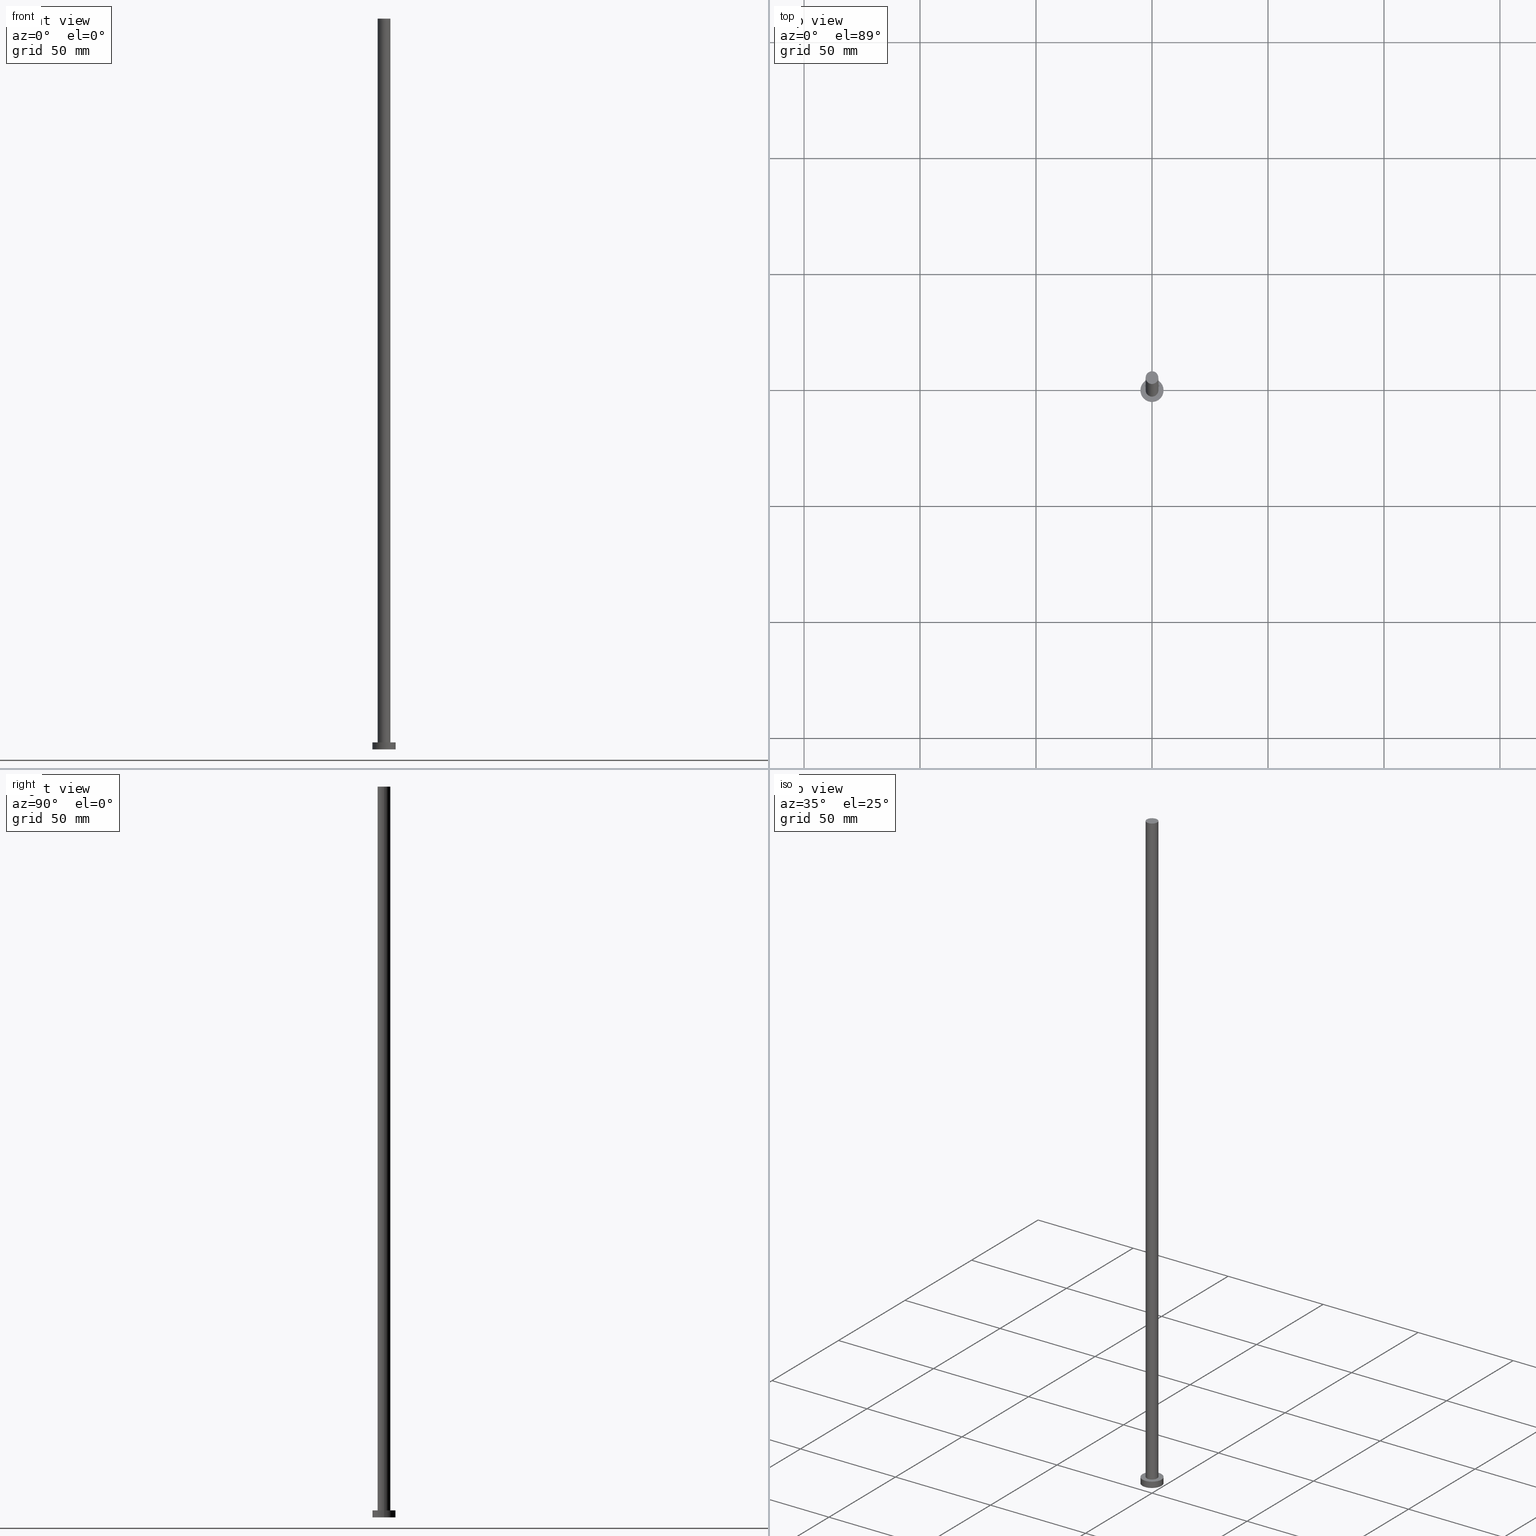
[diagram: canonical four-view strip — front | top / right | iso, engineering-drawing reading convention]
A machine part, canonical four-view strip (front | top / right | iso — engineering-drawing reading convention). The complete STEP part file that produces these views, byte-faithful:
ISO-10303-21;
HEADER;
FILE_DESCRIPTION (( 'STEP AP203' ),
    '1' );
FILE_NAME ('91d9.STEP',
    '2023-02-12T12:21:21',
    ( '' ),
    ( '' ),
    'SwSTEP 2.0',
    'SolidWorks 2019',
    '' );
FILE_SCHEMA (( 'CONFIG_CONTROL_DESIGN' ));
ENDSEC;

DATA;
#1 = EDGE_CURVE ( 'NONE', #143, #55, #217, .T. ) ;
#2 = CARTESIAN_POINT ( 'NONE',  ( 0.000000000000000000, 0.000000000000000000, 3.000000000000000000 ) ) ;
#3 = CARTESIAN_POINT ( 'NONE',  ( 0.000000000000000000, 0.000000000000000000, 3.000000000000000000 ) ) ;
#4 = AXIS2_PLACEMENT_3D ( 'NONE', #2, #221, #104 ) ;
#5 = ORIENTED_EDGE ( 'NONE', *, *, #17, .F. ) ;
#6 = DIRECTION ( 'NONE',  ( -0.000000000000000000, -0.000000000000000000, -1.000000000000000000 ) ) ;
#7 = ADVANCED_FACE ( 'NONE', ( #97 ), #250, .T. ) ;
#8 = AXIS2_PLACEMENT_3D ( 'NONE', #3, #147, #249 ) ;
#9 = DIRECTION ( 'NONE',  ( -1.000000000000000000, 0.000000000000000000, 0.000000000000000000 ) ) ;
#10 = CALENDAR_DATE ( 2023, 12, 2 ) ;
#11 = DESIGN_CONTEXT ( 'detailed design', #126, 'design' ) ;
#12 = PRODUCT_DEFINITION_SHAPE ( 'NONE', 'NONE',  #187 ) ;
#13 = APPROVAL_STATUS ( 'not_yet_approved' ) ;
#14 = DATE_TIME_ROLE ( 'classification_date' ) ;
#15 = EDGE_LOOP ( 'NONE', ( #253, #19 ) ) ;
#16 = CIRCLE ( 'NONE', #4, 2.750000000000000000 ) ;
#17 = EDGE_CURVE ( 'NONE', #98, #138, #188, .T. ) ;
#18 = ORIENTED_EDGE ( 'NONE', *, *, #1, .T. ) ;
#19 = ORIENTED_EDGE ( 'NONE', *, *, #150, .T. ) ;
#20 = ORIENTED_EDGE ( 'NONE', *, *, #150, .F. ) ;
#21 = ORGANIZATION ( 'NEUR�EN�', 'NEUR�EN�', '' ) ;
#22 = DIRECTION ( 'NONE',  ( 1.000000000000000000, 0.000000000000000000, 0.000000000000000000 ) ) ;
#23 = PRODUCT_DEFINITION_FORMATION_WITH_SPECIFIED_SOURCE ( 'LIBOVOLN�', '', #34, .NOT_KNOWN. ) ;
#24 = AXIS2_PLACEMENT_3D ( 'NONE', #95, #173, #209 ) ;
#25 = EDGE_CURVE ( 'NONE', #98, #157, #220, .T. ) ;
#26 = DIRECTION ( 'NONE',  ( -1.000000000000000000, 0.000000000000000000, 0.000000000000000000 ) ) ;
#27 = DIRECTION ( 'NONE',  ( 1.000000000000000000, 0.000000000000000000, 0.000000000000000000 ) ) ;
#28 = DIRECTION ( 'NONE',  ( -0.000000000000000000, -0.000000000000000000, -1.000000000000000000 ) ) ;
#29 = CIRCLE ( 'NONE', #129, 2.750000000000000000 ) ;
#30 = DATE_TIME_ROLE ( 'creation_date' ) ;
#31 = DIRECTION ( 'NONE',  ( -0.000000000000000000, -0.000000000000000000, -1.000000000000000000 ) ) ;
#32 = DIRECTION ( 'NONE',  ( 0.000000000000000000, 0.000000000000000000, 1.000000000000000000 ) ) ;
#33 = CARTESIAN_POINT ( 'NONE',  ( 2.750000000000000000, 3.367778697655221012E-16, 3.000000000000000000 ) ) ;
#34 = PRODUCT ( '91d9', '91d9', '', ( #151 ) ) ;
#35 = ORIENTED_EDGE ( 'NONE', *, *, #25, .F. ) ;
#36 = PERSON_AND_ORGANIZATION_ROLE ( 'classification_officer' ) ;
#37 = EDGE_LOOP ( 'NONE', ( #18, #215 ) ) ;
#38 = EDGE_LOOP ( 'NONE', ( #232, #216, #213, #83 ) ) ;
#39 = VECTOR ( 'NONE', #28, 1000.000000000000000 ) ;
#40 = EDGE_LOOP ( 'NONE', ( #222, #35, #233, #228 ) ) ;
#41 = DIRECTION ( 'NONE',  ( 1.000000000000000000, 0.000000000000000000, 0.000000000000000000 ) ) ;
#42 = DIRECTION ( 'NONE',  ( 0.000000000000000000, 0.000000000000000000, 1.000000000000000000 ) ) ;
#43 = PERSON ( 'NEUR�EN�', 'NEUR�EN�', 'NEUR�EN�', ('NEUR�EN�'), ('NEUR�EN�'), ('NEUR�EN�') ) ;
#44 = CARTESIAN_POINT ( 'NONE',  ( 0.000000000000000000, 0.000000000000000000, 315.0000000000000000 ) ) ;
#45 = AXIS2_PLACEMENT_3D ( 'NONE', #165, #70, #27 ) ;
#46 = CC_DESIGN_PERSON_AND_ORGANIZATION_ASSIGNMENT ( #168, #194, ( #23 ) ) ;
#47 = DIRECTION ( 'NONE',  ( 1.000000000000000000, 0.000000000000000000, 0.000000000000000000 ) ) ;
#48 = PERSON_AND_ORGANIZATION ( #43, #21 ) ;
#49 = CIRCLE ( 'NONE', #207, 5.000000000000000000 ) ;
#50 = PERSON_AND_ORGANIZATION ( #43, #21 ) ;
#51 = PERSON_AND_ORGANIZATION ( #43, #21 ) ;
#52 = CARTESIAN_POINT ( 'NONE',  ( 0.000000000000000000, 0.000000000000000000, 3.000000000000000000 ) ) ;
#53 = EDGE_CURVE ( 'NONE', #138, #254, #140, .T. ) ;
#54 = SECURITY_CLASSIFICATION ( '', '', #96 ) ;
#55 = VERTEX_POINT ( 'NONE', #162 ) ;
#56 = COORDINATED_UNIVERSAL_TIME_OFFSET ( 1, 0, .AHEAD. ) ;
#57 = CC_DESIGN_PERSON_AND_ORGANIZATION_ASSIGNMENT ( #230, #36, ( #54 ) ) ;
#58 = DIRECTION ( 'NONE',  ( -0.000000000000000000, -0.000000000000000000, -1.000000000000000000 ) ) ;
#59 = PERSON_AND_ORGANIZATION ( #43, #21 ) ;
#60 = ORIENTED_EDGE ( 'NONE', *, *, #235, .T. ) ;
#61 = DIRECTION ( 'NONE',  ( 0.000000000000000000, 0.000000000000000000, 1.000000000000000000 ) ) ;
#62 = CC_DESIGN_APPROVAL ( #128, ( #54 ) ) ;
#63 = CARTESIAN_POINT ( 'NONE',  ( 0.000000000000000000, 0.000000000000000000, 315.0000000000000000 ) ) ;
#64 = MANIFOLD_SOLID_BREP ( 'P�idat vysunut�m3', #245 ) ;
#65 = PLANE ( 'NONE',  #82 ) ;
#66 = LOCAL_TIME ( 13, 21, 21.00000000000000000, #223 ) ;
#67 = AXIS2_PLACEMENT_3D ( 'NONE', #114, #78, #136 ) ;
#68 = LOCAL_TIME ( 13, 21, 21.00000000000000000, #111 ) ;
#69 = FACE_OUTER_BOUND ( 'NONE', #201, .T. ) ;
#70 = DIRECTION ( 'NONE',  ( 0.000000000000000000, 0.000000000000000000, 1.000000000000000000 ) ) ;
#71 = APPROVAL_DATE_TIME ( #93, #146 ) ;
#72 = PERSON_AND_ORGANIZATION ( #43, #21 ) ;
#73 = APPROVAL_ROLE ( '' ) ;
#74 = CARTESIAN_POINT ( 'NONE',  ( -5.000000000000000000, 0.000000000000000000, 0.000000000000000000 ) ) ;
#75 = CALENDAR_DATE ( 2023, 12, 2 ) ;
#76 = APPROVAL_DATE_TIME ( #248, #212 ) ;
#77 = FACE_OUTER_BOUND ( 'NONE', #40, .T. ) ;
#78 = DIRECTION ( 'NONE',  ( -0.000000000000000000, -0.000000000000000000, -1.000000000000000000 ) ) ;
#79 = EDGE_CURVE ( 'NONE', #55, #139, #110, .T. ) ;
#80 = APPROVAL_STATUS ( 'not_yet_approved' ) ;
#81 = PRODUCT_RELATED_PRODUCT_CATEGORY ( 'detail', '', ( #34 ) ) ;
#82 = AXIS2_PLACEMENT_3D ( 'NONE', #145, #42, #88 ) ;
#83 = ORIENTED_EDGE ( 'NONE', *, *, #235, .F. ) ;
#84 = DIRECTION ( 'NONE',  ( -0.000000000000000000, -0.000000000000000000, -1.000000000000000000 ) ) ;
#85 = CARTESIAN_POINT ( 'NONE',  ( 5.000000000000000000, 6.123233995736766282E-16, 3.000000000000000000 ) ) ;
#86 = EDGE_LOOP ( 'NONE', ( #20, #137, #99, #5 ) ) ;
#87 = ADVANCED_FACE ( 'NONE', ( #69 ), #65, .F. ) ;
#88 = DIRECTION ( 'NONE',  ( 1.000000000000000000, 0.000000000000000000, -0.000000000000000000 ) ) ;
#89 = APPROVAL_PERSON_ORGANIZATION ( #50, #128, #176 ) ;
#90 =( GEOMETRIC_REPRESENTATION_CONTEXT ( 3 ) GLOBAL_UNCERTAINTY_ASSIGNED_CONTEXT ( ( #112 ) ) GLOBAL_UNIT_ASSIGNED_CONTEXT ( ( #208, #191, #130 ) ) REPRESENTATION_CONTEXT ( 'NONE', 'WORKASPACE' ) );
#91 = DIRECTION ( 'NONE',  ( 1.000000000000000000, 0.000000000000000000, 0.000000000000000000 ) ) ;
#92 = CALENDAR_DATE ( 2023, 12, 2 ) ;
#93 = DATE_AND_TIME ( #10, #68 ) ;
#94 = COORDINATED_UNIVERSAL_TIME_OFFSET ( 1, 0, .AHEAD. ) ;
#95 = CARTESIAN_POINT ( 'NONE',  ( 0.000000000000000000, 0.000000000000000000, 3.000000000000000000 ) ) ;
#96 = SECURITY_CLASSIFICATION_LEVEL ( 'unclassified' ) ;
#97 = FACE_OUTER_BOUND ( 'NONE', #115, .T. ) ;
#98 = VERTEX_POINT ( 'NONE', #234 ) ;
#99 = ORIENTED_EDGE ( 'NONE', *, *, #227, .T. ) ;
#100 = ORIENTED_EDGE ( 'NONE', *, *, #185, .T. ) ;
#101 = ORIENTED_EDGE ( 'NONE', *, *, #185, .F. ) ;
#102 = EDGE_CURVE ( 'NONE', #157, #254, #255, .T. ) ;
#103 = CC_DESIGN_PERSON_AND_ORGANIZATION_ASSIGNMENT ( #48, #243, ( #187 ) ) ;
#104 = DIRECTION ( 'NONE',  ( 1.000000000000000000, 0.000000000000000000, 0.000000000000000000 ) ) ;
#105 = AXIS2_PLACEMENT_3D ( 'NONE', #63, #203, #142 ) ;
#106 = CARTESIAN_POINT ( 'NONE',  ( 2.750000000000000000, 3.367778697655221012E-16, 315.0000000000000000 ) ) ;
#107 = CARTESIAN_POINT ( 'NONE',  ( -5.000000000000000000, 0.000000000000000000, 3.000000000000000000 ) ) ;
#108 = CC_DESIGN_APPROVAL ( #212, ( #187 ) ) ;
#109 = AXIS2_PLACEMENT_3D ( 'NONE', #52, #84, #158 ) ;
#110 = LINE ( 'NONE', #106, #155 ) ;
#111 = COORDINATED_UNIVERSAL_TIME_OFFSET ( 1, 0, .AHEAD. ) ;
#112 = UNCERTAINTY_MEASURE_WITH_UNIT (LENGTH_MEASURE( 1.000000000000000082E-05 ), #208, 'distance_accuracy_value', 'NONE');
#113 = CYLINDRICAL_SURFACE ( 'NONE', #109, 5.000000000000000000 ) ;
#114 = CARTESIAN_POINT ( 'NONE',  ( 0.000000000000000000, 0.000000000000000000, 3.000000000000000000 ) ) ;
#115 = EDGE_LOOP ( 'NONE', ( #182, #120, #60, #100 ) ) ;
#116 = AXIS2_PLACEMENT_3D ( 'NONE', #156, #58, #26 ) ;
#117 = CARTESIAN_POINT ( 'NONE',  ( 5.000000000000000000, 6.123233995736766282E-16, 3.000000000000000000 ) ) ;
#118 = ADVANCED_FACE ( 'NONE', ( #159 ), #119, .T. ) ;
#119 = PLANE ( 'NONE',  #105 ) ;
#120 = ORIENTED_EDGE ( 'NONE', *, *, #1, .F. ) ;
#121 = LOCAL_TIME ( 13, 21, 21.00000000000000000, #56 ) ;
#122 = CC_DESIGN_DATE_AND_TIME_ASSIGNMENT ( #226, #30, ( #187 ) ) ;
#123 = CIRCLE ( 'NONE', #8, 2.750000000000000000 ) ;
#124 = DIRECTION ( 'NONE',  ( 0.000000000000000000, 0.000000000000000000, 1.000000000000000000 ) ) ;
#125 = ADVANCED_FACE ( 'NONE', ( #135, #132 ), #193, .T. ) ;
#126 = APPLICATION_CONTEXT ( 'configuration controlled 3d designs of mechanical parts and assemblies' ) ;
#127 = LINE ( 'NONE', #189, #39 ) ;
#128 = APPROVAL ( #80, 'NEUR�EN�' ) ;
#129 = AXIS2_PLACEMENT_3D ( 'NONE', #44, #124, #22 ) ;
#130 =( NAMED_UNIT ( * ) SI_UNIT ( $, .STERADIAN. ) SOLID_ANGLE_UNIT ( ) );
#131 = CYLINDRICAL_SURFACE ( 'NONE', #184, 2.750000000000000000 ) ;
#132 = FACE_OUTER_BOUND ( 'NONE', #15, .T. ) ;
#133 = CYLINDRICAL_SURFACE ( 'NONE', #67, 5.000000000000000000 ) ;
#134 = DATE_AND_TIME ( #75, #251 ) ;
#135 = FACE_BOUND ( 'NONE', #236, .T. ) ;
#136 = DIRECTION ( 'NONE',  ( -1.000000000000000000, 0.000000000000000000, 0.000000000000000000 ) ) ;
#137 = ORIENTED_EDGE ( 'NONE', *, *, #102, .T. ) ;
#138 = VERTEX_POINT ( 'NONE', #74 ) ;
#139 = VERTEX_POINT ( 'NONE', #33 ) ;
#140 = CIRCLE ( 'NONE', #45, 5.000000000000000000 ) ;
#141 = ADVANCED_FACE ( 'NONE', ( #77 ), #113, .T. ) ;
#142 = DIRECTION ( 'NONE',  ( 1.000000000000000000, 0.000000000000000000, -0.000000000000000000 ) ) ;
#143 = VERTEX_POINT ( 'NONE', #144 ) ;
#144 = CARTESIAN_POINT ( 'NONE',  ( -2.750000000000000000, 0.000000000000000000, 315.0000000000000000 ) ) ;
#145 = CARTESIAN_POINT ( 'NONE',  ( 0.000000000000000000, 0.000000000000000000, 0.000000000000000000 ) ) ;
#146 = APPROVAL ( #154, 'NEUR�EN�' ) ;
#147 = DIRECTION ( 'NONE',  ( 0.000000000000000000, 0.000000000000000000, 1.000000000000000000 ) ) ;
#148 = DIRECTION ( 'NONE',  ( -0.000000000000000000, -0.000000000000000000, -1.000000000000000000 ) ) ;
#149 = VECTOR ( 'NONE', #148, 1000.000000000000000 ) ;
#150 = EDGE_CURVE ( 'NONE', #157, #98, #252, .T. ) ;
#151 = MECHANICAL_CONTEXT ( 'NONE', #237, 'mechanical' ) ;
#152 = CALENDAR_DATE ( 2023, 12, 2 ) ;
#153 = APPROVAL_DATE_TIME ( #246, #128 ) ;
#154 = APPROVAL_STATUS ( 'not_yet_approved' ) ;
#155 = VECTOR ( 'NONE', #240, 1000.000000000000000 ) ;
#156 = CARTESIAN_POINT ( 'NONE',  ( 0.000000000000000000, 0.000000000000000000, 315.0000000000000000 ) ) ;
#157 = VERTEX_POINT ( 'NONE', #117 ) ;
#158 = DIRECTION ( 'NONE',  ( -1.000000000000000000, 0.000000000000000000, 0.000000000000000000 ) ) ;
#159 = FACE_OUTER_BOUND ( 'NONE', #37, .T. ) ;
#160 = VERTEX_POINT ( 'NONE', #202 ) ;
#161 = EDGE_CURVE ( 'NONE', #55, #143, #29, .T. ) ;
#162 = CARTESIAN_POINT ( 'NONE',  ( 2.750000000000000000, 3.367778697655221012E-16, 315.0000000000000000 ) ) ;
#163 = APPROVAL_ROLE ( '' ) ;
#164 = LOCAL_TIME ( 13, 21, 21.00000000000000000, #94 ) ;
#165 = CARTESIAN_POINT ( 'NONE',  ( 0.000000000000000000, 0.000000000000000000, 0.000000000000000000 ) ) ;
#166 = PERSON_AND_ORGANIZATION ( #43, #21 ) ;
#167 = PERSON_AND_ORGANIZATION_ROLE ( 'design_owner' ) ;
#168 = PERSON_AND_ORGANIZATION ( #43, #21 ) ;
#169 = COORDINATED_UNIVERSAL_TIME_OFFSET ( 1, 0, .AHEAD. ) ;
#170 = CC_DESIGN_APPROVAL ( #146, ( #23 ) ) ;
#171 = AXIS2_PLACEMENT_3D ( 'NONE', #218, #200, #41 ) ;
#172 = APPLICATION_PROTOCOL_DEFINITION ( 'international standard', 'config_control_design', 1994, #237 ) ;
#173 = DIRECTION ( 'NONE',  ( 0.000000000000000000, 0.000000000000000000, 1.000000000000000000 ) ) ;
#174 = FACE_OUTER_BOUND ( 'NONE', #86, .T. ) ;
#175 = EDGE_CURVE ( 'NONE', #139, #160, #16, .T. ) ;
#176 = APPROVAL_ROLE ( '' ) ;
#177 = ORIENTED_EDGE ( 'NONE', *, *, #53, .F. ) ;
#178 = SHAPE_DEFINITION_REPRESENTATION ( #12, #238 ) ;
#179 = CC_DESIGN_PERSON_AND_ORGANIZATION_ASSIGNMENT ( #59, #214, ( #23 ) ) ;
#180 = ORIENTED_EDGE ( 'NONE', *, *, #227, .F. ) ;
#181 = DIRECTION ( 'NONE',  ( 1.000000000000000000, 0.000000000000000000, 0.000000000000000000 ) ) ;
#182 = ORIENTED_EDGE ( 'NONE', *, *, #79, .F. ) ;
#183 = APPROVAL_PERSON_ORGANIZATION ( #166, #146, #163 ) ;
#184 = AXIS2_PLACEMENT_3D ( 'NONE', #247, #31, #9 ) ;
#185 = EDGE_CURVE ( 'NONE', #160, #139, #123, .T. ) ;
#186 = CARTESIAN_POINT ( 'NONE',  ( 0.000000000000000000, 0.000000000000000000, 3.000000000000000000 ) ) ;
#187 = PRODUCT_DEFINITION ( 'NEZN�M�', '', #23, #11 ) ;
#188 = LINE ( 'NONE', #107, #239 ) ;
#189 = CARTESIAN_POINT ( 'NONE',  ( -2.750000000000000000, 0.000000000000000000, 315.0000000000000000 ) ) ;
#190 = CARTESIAN_POINT ( 'NONE',  ( 0.000000000000000000, 0.000000000000000000, 0.000000000000000000 ) ) ;
#191 =( NAMED_UNIT ( * ) PLANE_ANGLE_UNIT ( ) SI_UNIT ( $, .RADIAN. ) );
#192 = APPLICATION_PROTOCOL_DEFINITION ( 'international standard', 'config_control_design', 1994, #126 ) ;
#193 = PLANE ( 'NONE',  #24 ) ;
#194 = PERSON_AND_ORGANIZATION_ROLE ( 'creator' ) ;
#195 = CC_DESIGN_PERSON_AND_ORGANIZATION_ASSIGNMENT ( #51, #167, ( #34 ) ) ;
#196 = CARTESIAN_POINT ( 'NONE',  ( 0.000000000000000000, 0.000000000000000000, 315.0000000000000000 ) ) ;
#197 = CALENDAR_DATE ( 2023, 12, 2 ) ;
#198 = CC_DESIGN_DATE_AND_TIME_ASSIGNMENT ( #134, #14, ( #54 ) ) ;
#199 = CC_DESIGN_SECURITY_CLASSIFICATION ( #54, ( #23 ) ) ;
#200 = DIRECTION ( 'NONE',  ( 0.000000000000000000, 0.000000000000000000, 1.000000000000000000 ) ) ;
#201 = EDGE_LOOP ( 'NONE', ( #177, #180 ) ) ;
#202 = CARTESIAN_POINT ( 'NONE',  ( -2.750000000000000000, 0.000000000000000000, 3.000000000000000000 ) ) ;
#203 = DIRECTION ( 'NONE',  ( 0.000000000000000000, 0.000000000000000000, 1.000000000000000000 ) ) ;
#204 = ORIENTED_EDGE ( 'NONE', *, *, #175, .F. ) ;
#205 = DIRECTION ( 'NONE',  ( 0.000000000000000000, 0.000000000000000000, 1.000000000000000000 ) ) ;
#206 = DIRECTION ( 'NONE',  ( 1.000000000000000000, 0.000000000000000000, 0.000000000000000000 ) ) ;
#207 = AXIS2_PLACEMENT_3D ( 'NONE', #190, #224, #206 ) ;
#208 =( LENGTH_UNIT ( ) NAMED_UNIT ( * ) SI_UNIT ( .MILLI., .METRE. ) );
#209 = DIRECTION ( 'NONE',  ( 1.000000000000000000, 0.000000000000000000, -0.000000000000000000 ) ) ;
#210 = ADVANCED_FACE ( 'NONE', ( #174 ), #133, .T. ) ;
#211 = FACE_OUTER_BOUND ( 'NONE', #38, .T. ) ;
#212 = APPROVAL ( #13, 'NEUR�EN�' ) ;
#213 = ORIENTED_EDGE ( 'NONE', *, *, #175, .T. ) ;
#214 = PERSON_AND_ORGANIZATION_ROLE ( 'design_supplier' ) ;
#215 = ORIENTED_EDGE ( 'NONE', *, *, #161, .T. ) ;
#216 = ORIENTED_EDGE ( 'NONE', *, *, #79, .T. ) ;
#217 = CIRCLE ( 'NONE', #231, 2.750000000000000000 ) ;
#218 = CARTESIAN_POINT ( 'NONE',  ( 0.000000000000000000, 0.000000000000000000, 3.000000000000000000 ) ) ;
#219 = ADVANCED_FACE ( 'NONE', ( #211 ), #131, .T. ) ;
#220 = CIRCLE ( 'NONE', #225, 5.000000000000000000 ) ;
#221 = DIRECTION ( 'NONE',  ( 0.000000000000000000, 0.000000000000000000, 1.000000000000000000 ) ) ;
#222 = ORIENTED_EDGE ( 'NONE', *, *, #102, .F. ) ;
#223 = COORDINATED_UNIVERSAL_TIME_OFFSET ( 1, 0, .AHEAD. ) ;
#224 = DIRECTION ( 'NONE',  ( 0.000000000000000000, 0.000000000000000000, 1.000000000000000000 ) ) ;
#225 = AXIS2_PLACEMENT_3D ( 'NONE', #186, #205, #91 ) ;
#226 = DATE_AND_TIME ( #92, #66 ) ;
#227 = EDGE_CURVE ( 'NONE', #254, #138, #49, .T. ) ;
#228 = ORIENTED_EDGE ( 'NONE', *, *, #53, .T. ) ;
#229 = APPROVAL_PERSON_ORGANIZATION ( #72, #212, #73 ) ;
#230 = PERSON_AND_ORGANIZATION ( #43, #21 ) ;
#231 = AXIS2_PLACEMENT_3D ( 'NONE', #196, #61, #181 ) ;
#232 = ORIENTED_EDGE ( 'NONE', *, *, #161, .F. ) ;
#233 = ORIENTED_EDGE ( 'NONE', *, *, #17, .T. ) ;
#234 = CARTESIAN_POINT ( 'NONE',  ( -5.000000000000000000, 0.000000000000000000, 3.000000000000000000 ) ) ;
#235 = EDGE_CURVE ( 'NONE', #143, #160, #127, .T. ) ;
#236 = EDGE_LOOP ( 'NONE', ( #101, #204 ) ) ;
#237 = APPLICATION_CONTEXT ( 'configuration controlled 3d designs of mechanical parts and assemblies' ) ;
#238 = ADVANCED_BREP_SHAPE_REPRESENTATION ( '91d9', ( #64, #242 ), #90 ) ;
#239 = VECTOR ( 'NONE', #6, 1000.000000000000000 ) ;
#240 = DIRECTION ( 'NONE',  ( -0.000000000000000000, -0.000000000000000000, -1.000000000000000000 ) ) ;
#241 = CARTESIAN_POINT ( 'NONE',  ( 5.000000000000000000, 6.123233995736766282E-16, 0.000000000000000000 ) ) ;
#242 = AXIS2_PLACEMENT_3D ( 'NONE', #244, #32, #47 ) ;
#243 = PERSON_AND_ORGANIZATION_ROLE ( 'creator' ) ;
#244 = CARTESIAN_POINT ( 'NONE',  ( 0.000000000000000000, 0.000000000000000000, 0.000000000000000000 ) ) ;
#245 = CLOSED_SHELL ( 'NONE', ( #219, #210, #141, #125, #87, #7, #118 ) ) ;
#246 = DATE_AND_TIME ( #197, #121 ) ;
#247 = CARTESIAN_POINT ( 'NONE',  ( 0.000000000000000000, 0.000000000000000000, 315.0000000000000000 ) ) ;
#248 = DATE_AND_TIME ( #152, #164 ) ;
#249 = DIRECTION ( 'NONE',  ( 1.000000000000000000, 0.000000000000000000, 0.000000000000000000 ) ) ;
#250 = CYLINDRICAL_SURFACE ( 'NONE', #116, 2.750000000000000000 ) ;
#251 = LOCAL_TIME ( 13, 21, 21.00000000000000000, #169 ) ;
#252 = CIRCLE ( 'NONE', #171, 5.000000000000000000 ) ;
#253 = ORIENTED_EDGE ( 'NONE', *, *, #25, .T. ) ;
#254 = VERTEX_POINT ( 'NONE', #241 ) ;
#255 = LINE ( 'NONE', #85, #149 ) ;
ENDSEC;
END-ISO-10303-21;
